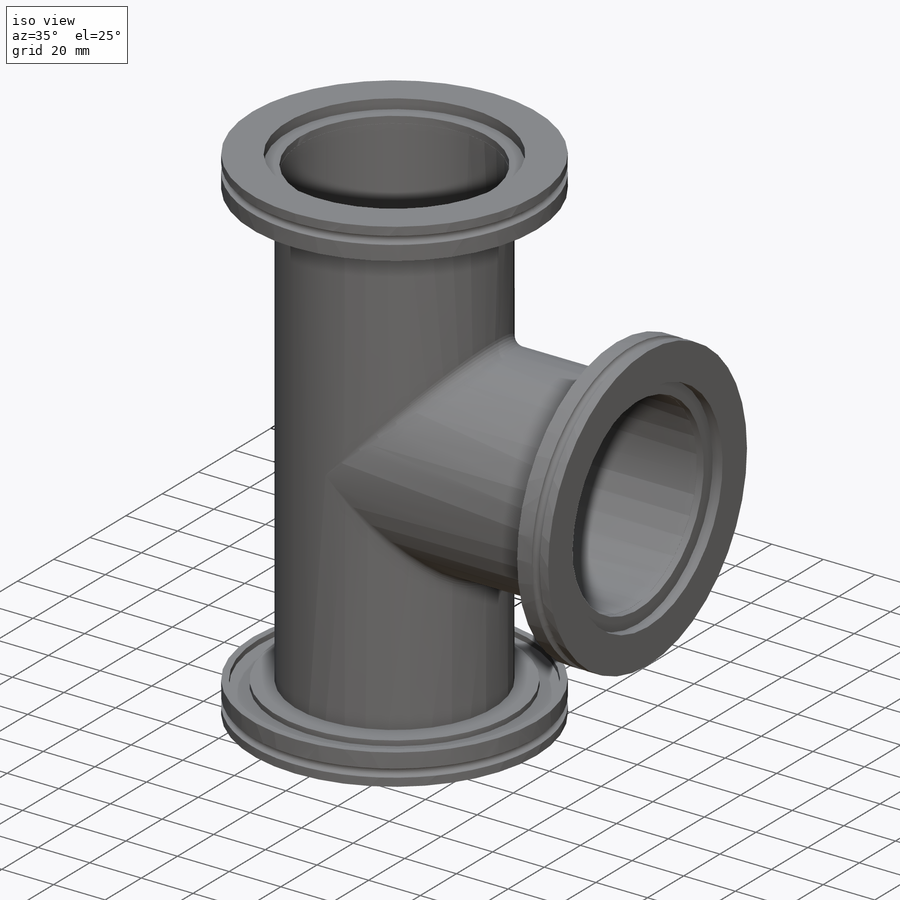
[diagram: iso view]
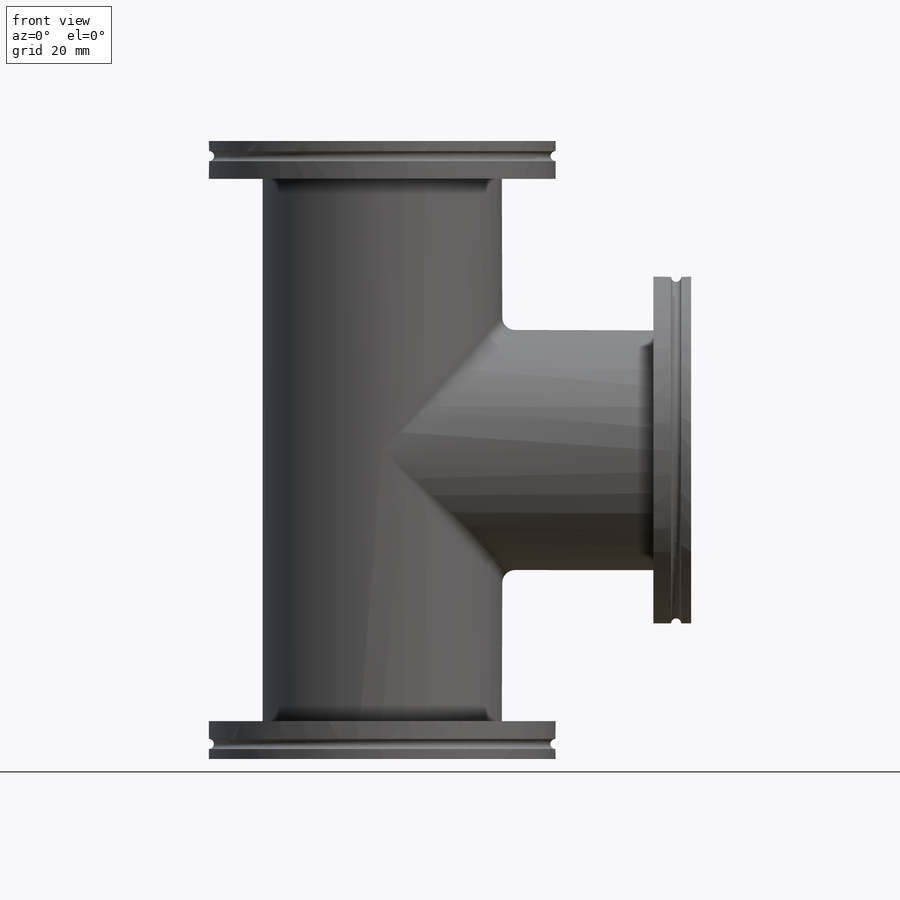
[diagram: front view]
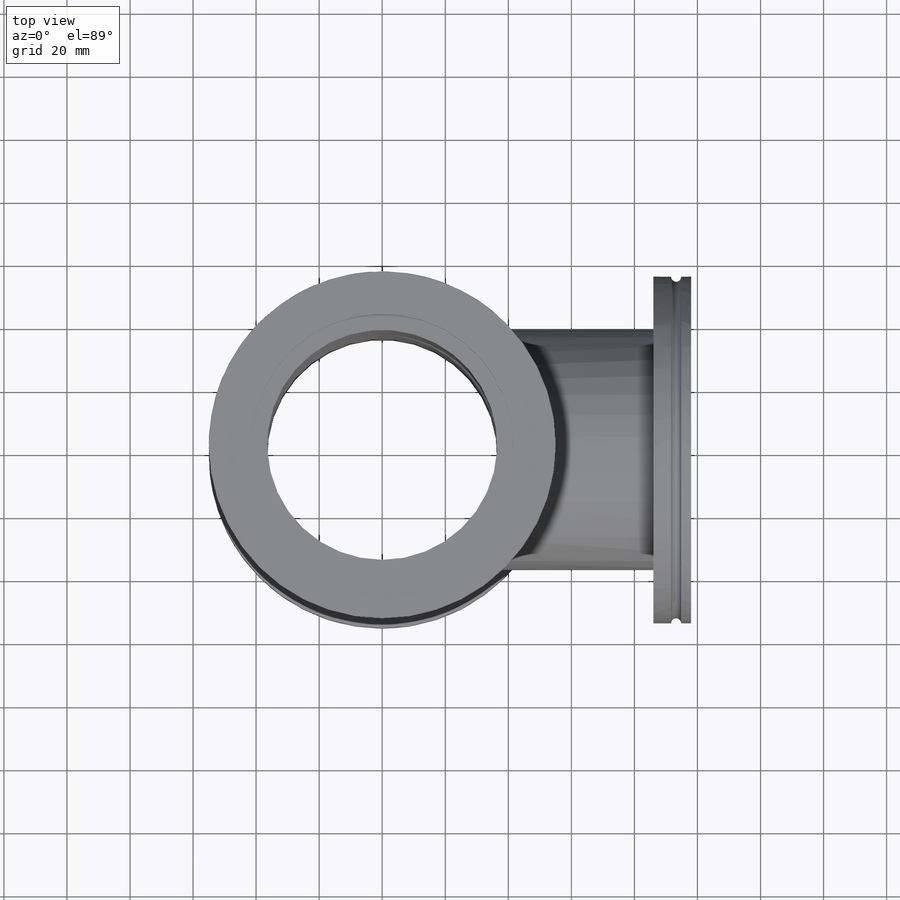
[diagram: top view]
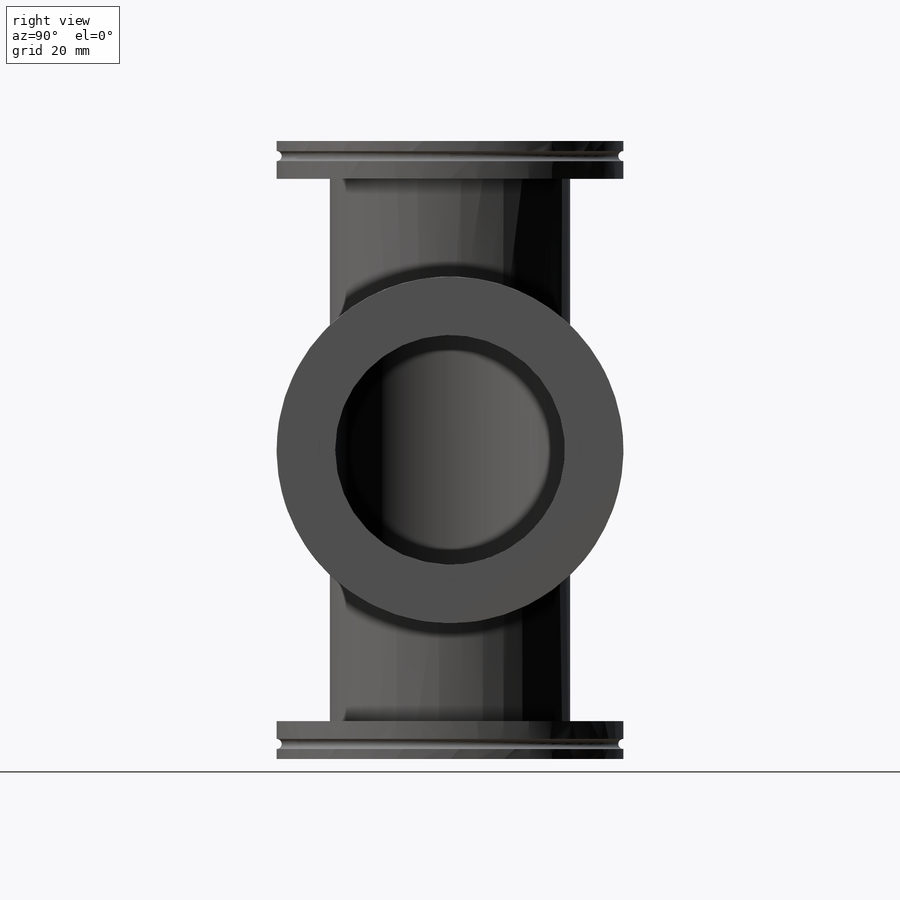
[diagram: right view]
SOLIDWORKS PART (.sldprt)
format: sldprt  version: not decoded by parser v0  size: 759,808 bytes
history: native  units: mm
features: sketch x4, plane x3, cut_extrude x2, shell x2, material x1, revolve x1, extrude x1, pattern_circular x1, boolean_combine x1, fillet x1 (+14 scaffold rows collapsed)
feature tree (31):
  scaffold x14  (default folders/planes/origin — collapsed)
  material  "AISI 304"
  sketch  "Sketch1"  dims[c1.D1=3.175mm c1.Flange OD=110.0mm c1.Lip OD=105.0mm c1.Lip ID=92.0mm c1.Centering Ring Groove OD=83.0mm c1.D6=57.2mm c1.Flange Thickness=12.0mm c1.D8=3.8mm c1.D9=2.0mm c1.D10=3.175mm c1.Centering Ring Groove Width=6.35mm c1.D2=3.8mm c1.D3=3.8mm c1.D4=3.8mm c2.D3=3.8mm c2.D4=3.8mm c3.D3=3.8mm c3.D4=3.8mm c4.D3=3.8mm c4.D4=3.8mm c5.D3=3.8mm c5.D4=3.8mm c6.D3=3.8mm c6.D8=3.8mm c6.D2=12.0mm c7.D3=12.0mm c7.D4=12.0mm c8.D3=12.0mm c8.D4=12.0mm c9.D3=12.0mm c9.D4=12.0mm c10.D3=12.0mm c10.D4=12.0mm c11.D3=12.0mm c11.Flange Thickness=12.0mm c11.Length=196.0mm]
  revolve  "Revolve1"  Angle=360deg
  sketch  "Sketch2"  dims[D1=76.2mm]
  cut_extrude  "Weld Socket"  Depth=5.588mm
  sketch  "Sketch3"  dims[Throat Dia=73.0mm]
  cut_extrude  "Throat"  [1 undecoded]
  sketch  "Sketch5"  dims[D1=76.2mm]
  extrude  "Boss-Extrude1"  [1 undecoded]
  pattern_circular  "CirPattern1"  Count=3 Angle=90deg
  boolean_combine  "Combine1"
  fillet  "Fillet1"  Radius=4mm
  shell  "Shell1"  Thickness=1.651mm
  shell  "Combine2"  [1 undecoded]
  plane  "Plane1"  Offset=2mm
  plane  "Plane2"  Offset=2mm
  plane  "Plane4"  Offset=2mm
decode coverage: 9 of 13 modeling features carry decoded parameters
note: 3 parameter values undecoded
summary: no parameter record found for 3 features
note: suppression state not decoded; provenance and decode notes live in map.json
